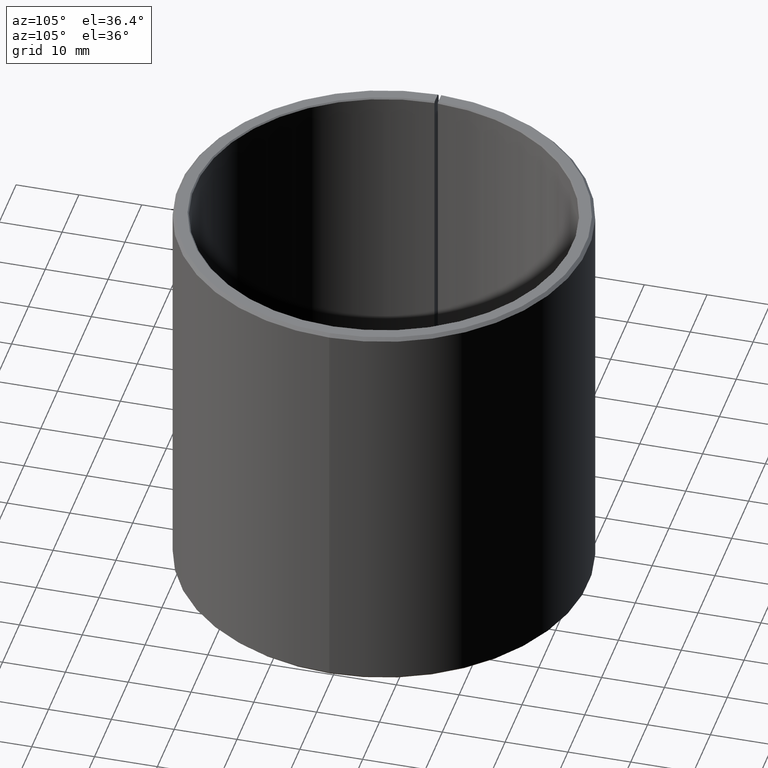
[diagram: clean part render]
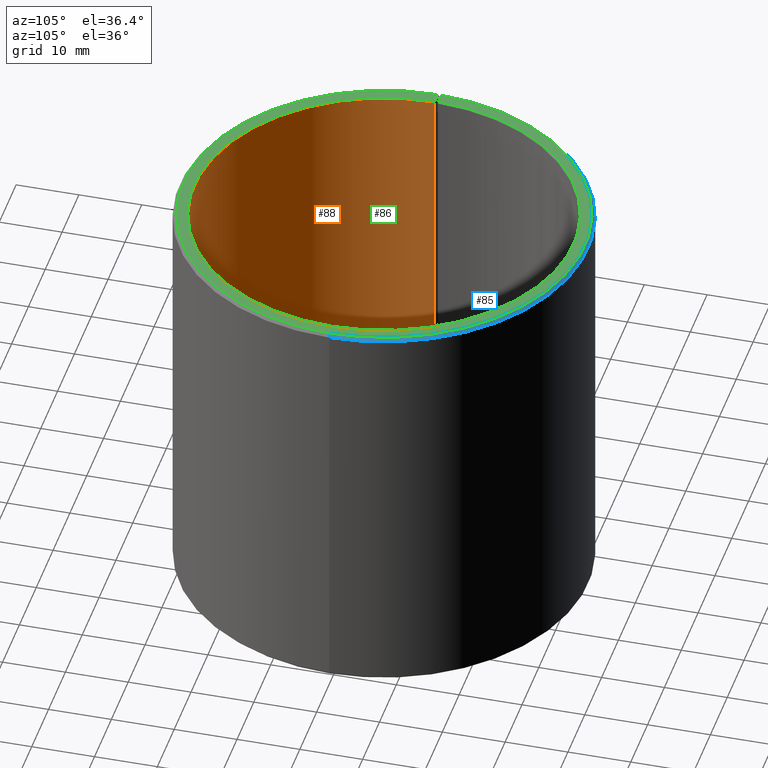
[diagram: same view with three faces highlighted in distinct colors, each labeled with its STEP entity id]
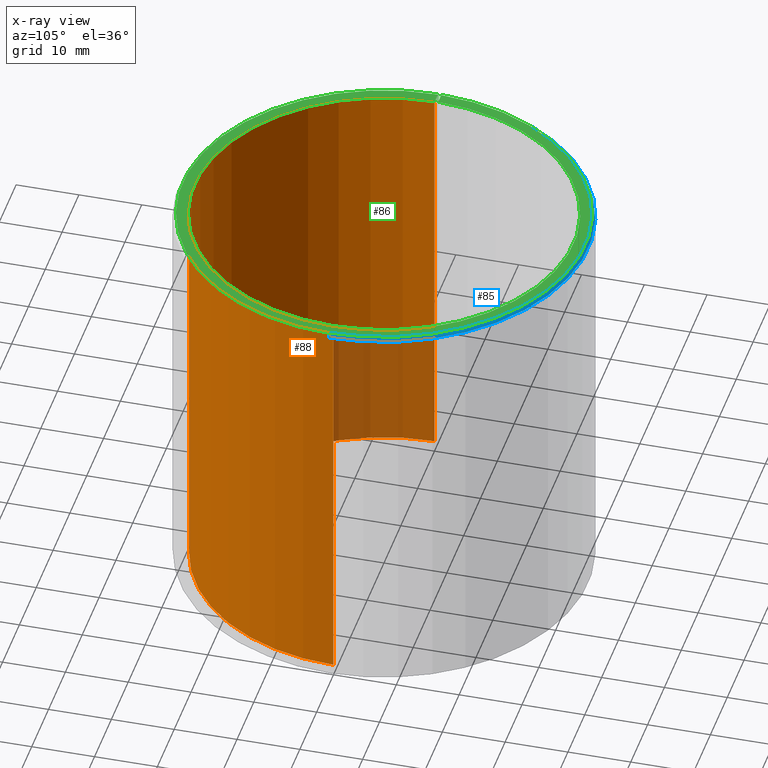
[diagram: x-ray of the same camera — body ghosted, the three highlighted faces saturated]
A machine part, auxiliary view with three faces highlighted in distinct colors.
The next image is the same camera in x-ray (body ghosted, the three faces saturated) — at least one of them is partly hidden behind the body in this view.
Their STEP definitions:

[orange] entity #88 — the highlighted cylindrical surface (partial cylindrical patch) has radius 30 mm, axis along (0, -0, 1).
#88=ADVANCED_FACE('',(#118),#119,.F.);
#118=FACE_OUTER_BOUND('',#150,.T.);
#119=CYLINDRICAL_SURFACE('',#151,30.0);
#150=EDGE_LOOP('',(#251,#252,#253,#254));
#151=AXIS2_PLACEMENT_3D('',#255,#256,#257);
#251=ORIENTED_EDGE('',*,*,#280,.T.);
#252=ORIENTED_EDGE('',*,*,#302,.F.);
#253=ORIENTED_EDGE('',*,*,#317,.F.);
#254=ORIENTED_EDGE('',*,*,#315,.T.);
#255=CARTESIAN_POINT('',(1.92965130318449E-014,-2.19225966735225E-014,32.5));
#256=DIRECTION('',(5.48707263966372E-016,-6.09939603923743E-016,1.0));
#257=DIRECTION('',(-1.0,-3.21624529935327E-016,5.48707263966372E-016));
#280=EDGE_CURVE('',#318,#319,#320,.T.);
#302=EDGE_CURVE('',#356,#319,#358,.T.);
#315=EDGE_CURVE('',#376,#318,#377,.T.);
#317=EDGE_CURVE('',#376,#356,#379,.T.);
#318=VERTEX_POINT('',#380);
#319=VERTEX_POINT('',#381);
#320=LINE('',#382,#383);
#356=VERTEX_POINT('',#430);
#358=CIRCLE('',#433,30.0);
#376=VERTEX_POINT('',#458);
#377=CIRCLE('',#459,30.0);
#379=LINE('',#462,#463);
#380=CARTESIAN_POINT('',(30.0,-3.58853686142732E-014,64.8));
#381=CARTESIAN_POINT('',(30.0,3.98976626846374E-015,0.199999999999982));
#382=CARTESIAN_POINT('',(30.0,-1.59478011729047E-014,32.5));
#383=VECTOR('',#464,1.0);
#430=CARTESIAN_POINT('',(-30.0,-1.12441660456888E-014,0.200000000000019));
#433=AXIS2_PLACEMENT_3D('',#504,#505,#506);
#458=CARTESIAN_POINT('',(-30.0,-5.11315473964172E-014,64.8));
#459=AXIS2_PLACEMENT_3D('',#529,#530,#531);
#462=CARTESIAN_POINT('',(-30.0,-5.11315473964172E-014,64.8));
#463=VECTOR('',#533,10.0);
#464=DIRECTION('',(-5.48707263966372E-016,6.09939603923743E-016,-1.0));
#504=CARTESIAN_POINT('',(1.57326840573107E-015,-1.97890599815828E-015,0.199999999999998));
#505=DIRECTION('',(5.48707263966372E-016,-6.09939603923743E-016,1.0));
#506=DIRECTION('',(-1.0,-3.21624529935327E-016,5.48707263966372E-016));
#529=CARTESIAN_POINT('',(3.70197576579588E-014,-4.18662873488867E-014,64.8));
#530=DIRECTION('',(5.48707263966372E-016,-6.09939603923743E-016,1.0));
#531=DIRECTION('',(-1.0,-3.21624529935327E-016,5.48707263966372E-016));
#533=DIRECTION('',(-5.48707263966372E-016,6.17451723695487E-016,-1.0));

[blue] entity #85 — the highlighted conical surface has half-angle 45 deg.
#85=ADVANCED_FACE('',(#112),#113,.T.);
#112=FACE_OUTER_BOUND('',#144,.T.);
#113=CONICAL_SURFACE('',#145,32.25,0.785398163397444);
#144=EDGE_LOOP('',(#228,#229,#230,#231));
#145=AXIS2_PLACEMENT_3D('',#232,#233,#234);
#228=ORIENTED_EDGE('',*,*,#287,.T.);
#229=ORIENTED_EDGE('',*,*,#309,.T.);
#230=ORIENTED_EDGE('',*,*,#310,.T.);
#231=ORIENTED_EDGE('',*,*,#311,.F.);
#232=CARTESIAN_POINT('',(3.69923222947605E-014,-4.18388519856884E-014,64.75));
#233=DIRECTION('',(-5.48707263966372E-016,6.09939603923743E-016,-1.0));
#234=DIRECTION('',(-1.0,-3.21624529935327E-016,5.48707263966372E-016));
#287=EDGE_CURVE('',#331,#332,#333,.T.);
#309=EDGE_CURVE('',#332,#366,#368,.T.);
#310=EDGE_CURVE('',#366,#369,#370,.T.);
#311=EDGE_CURVE('',#331,#369,#371,.T.);
#331=VERTEX_POINT('',#397);
#332=VERTEX_POINT('',#398);
#333=LINE('',#399,#400);
#366=VERTEX_POINT('',#444);
#368=CIRCLE('',#447,32.5);
#369=VERTEX_POINT('',#448);
#370=LINE('',#449,#450);
#371=CIRCLE('',#451,32.0);
#397=CARTESIAN_POINT('',(32.0,-3.56182216860104E-014,65.0));
#398=CARTESIAN_POINT('',(32.5,-3.4967968873413E-014,64.5));
#399=CARTESIAN_POINT('',(32.25,-3.54159468225243E-014,64.75));
#400=VECTOR('',#477,1.0);
#444=CARTESIAN_POINT('',(-32.4950500925827,0.567203209211666,64.5));
#447=AXIS2_PLACEMENT_3D('',#517,#518,#519);
#448=CARTESIAN_POINT('',(-31.9951262450045,0.558477005993023,65.0));
#449=CARTESIAN_POINT('',(-32.4950500925827,0.567203209211665,64.5));
#450=VECTOR('',#520,9.99999999999999);
#451=AXIS2_PLACEMENT_3D('',#521,#522,#523);
#477=DIRECTION('',(0.707106781186544,5.72119710538373E-016,-0.707106781186551));
#517=CARTESIAN_POINT('',(3.68551454787689E-014,-4.17016751696968E-014,64.5));
#518=DIRECTION('',(5.48707263966372E-016,-6.09939603923743E-016,1.0));
#519=DIRECTION('',(-1.0,-3.21624529935328E-016,5.48707263966372E-016));
#520=DIRECTION('',(0.706999085398821,-0.0123407149398271,0.70710678118655));
#521=CARTESIAN_POINT('',(3.7129499110752E-014,-4.197602880168E-014,65.0));
#522=DIRECTION('',(5.48707263966372E-016,-6.09939603923743E-016,1.0));
#523=DIRECTION('',(-1.0,-3.21624529935328E-016,5.48707263966372E-016));

[green] entity #86 — the highlighted planar face has unit normal (0, -0, 1).
#86=ADVANCED_FACE('',(#114),#115,.T.);
#114=FACE_OUTER_BOUND('',#146,.T.);
#115=PLANE('',#147);
#146=EDGE_LOOP('',(#235,#236,#237,#238,#239,#240));
#147=AXIS2_PLACEMENT_3D('',#241,#242,#243);
#235=ORIENTED_EDGE('',*,*,#312,.T.);
#236=ORIENTED_EDGE('',*,*,#285,.F.);
#237=ORIENTED_EDGE('',*,*,#313,.F.);
#238=ORIENTED_EDGE('',*,*,#314,.F.);
#239=ORIENTED_EDGE('',*,*,#288,.T.);
#240=ORIENTED_EDGE('',*,*,#311,.T.);
#241=CARTESIAN_POINT('',(-31.1,-5.155140910363E-014,65.0));
#242=DIRECTION('',(5.48707263966372E-016,-6.09939603923743E-016,1.0));
#243=DIRECTION('',(-1.0,-3.21624529935327E-016,5.48707263966372E-016));
#285=EDGE_CURVE('',#326,#328,#329,.T.);
#288=EDGE_CURVE('',#334,#331,#335,.T.);
#311=EDGE_CURVE('',#331,#369,#371,.T.);
#312=EDGE_CURVE('',#369,#328,#372,.T.);
#313=EDGE_CURVE('',#373,#326,#374,.T.);
#314=EDGE_CURVE('',#334,#373,#375,.T.);
#326=VERTEX_POINT('',#390);
#328=VERTEX_POINT('',#393);
#329=CIRCLE('',#394,30.2);
#331=VERTEX_POINT('',#397);
#334=VERTEX_POINT('',#401);
#335=CIRCLE('',#402,32.0);
#369=VERTEX_POINT('',#448);
#371=CIRCLE('',#451,32.0);
#372=LINE('',#452,#453);
#373=VERTEX_POINT('',#454);
#374=CIRCLE('',#455,30.2);
#375=LINE('',#456,#457);
#390=CARTESIAN_POINT('',(30.2,-3.59675245650538E-014,65.0));
#393=CARTESIAN_POINT('',(-30.195400393723,0.527062674405915,65.0));
#394=AXIS2_PLACEMENT_3D('',#473,#474,#475);
#397=CARTESIAN_POINT('',(32.0,-3.56182216860104E-014,65.0));
#401=CARTESIAN_POINT('',(-32.0,-5.20070025889959E-014,65.0));
#402=AXIS2_PLACEMENT_3D('',#478,#479,#480);
#448=CARTESIAN_POINT('',(-31.9951262450045,0.558477005993023,65.0));
#451=AXIS2_PLACEMENT_3D('',#521,#522,#523);
#452=CARTESIAN_POINT('',(-31.9951262450045,0.558477005993022,65.0));
#453=VECTOR('',#524,9.99999999999999);
#454=CARTESIAN_POINT('',(-30.2,-5.1095815618264E-014,65.0));
#455=AXIS2_PLACEMENT_3D('',#525,#526,#527);
#456=CARTESIAN_POINT('',(-32.0,-5.20070025889959E-014,65.0));
#457=VECTOR('',#528,10.0);
#473=CARTESIAN_POINT('',(3.7129499110752E-014,-4.197602880168E-014,65.0));
#474=DIRECTION('',(5.48707263966372E-016,-6.09939603923743E-016,1.0));
#475=DIRECTION('',(-1.0,-3.21624529935327E-016,5.48707263966372E-016));
#478=CARTESIAN_POINT('',(3.7129499110752E-014,-4.197602880168E-014,65.0));
#479=DIRECTION('',(5.48707263966372E-016,-6.09939603923743E-016,1.0));
#480=DIRECTION('',(-1.0,-3.21624529935328E-016,5.48707263966372E-016));
#521=CARTESIAN_POINT('',(3.7129499110752E-014,-4.197602880168E-014,65.0));
#522=DIRECTION('',(5.48707263966372E-016,-6.09939603923743E-016,1.0));
#523=DIRECTION('',(-1.0,-3.21624529935328E-016,5.48707263966372E-016));
#524=DIRECTION('',(0.999847695156391,-0.0174524064372832,-5.5926860706222E-016));
#525=CARTESIAN_POINT('',(3.7129499110752E-014,-4.197602880168E-014,65.0));
#526=DIRECTION('',(5.48707263966372E-016,-6.09939603923743E-016,1.0));
#527=DIRECTION('',(-1.0,-3.21624529935327E-016,5.48707263966372E-016));
#528=DIRECTION('',(1.0,3.21624529935327E-016,-5.48707263966372E-016));